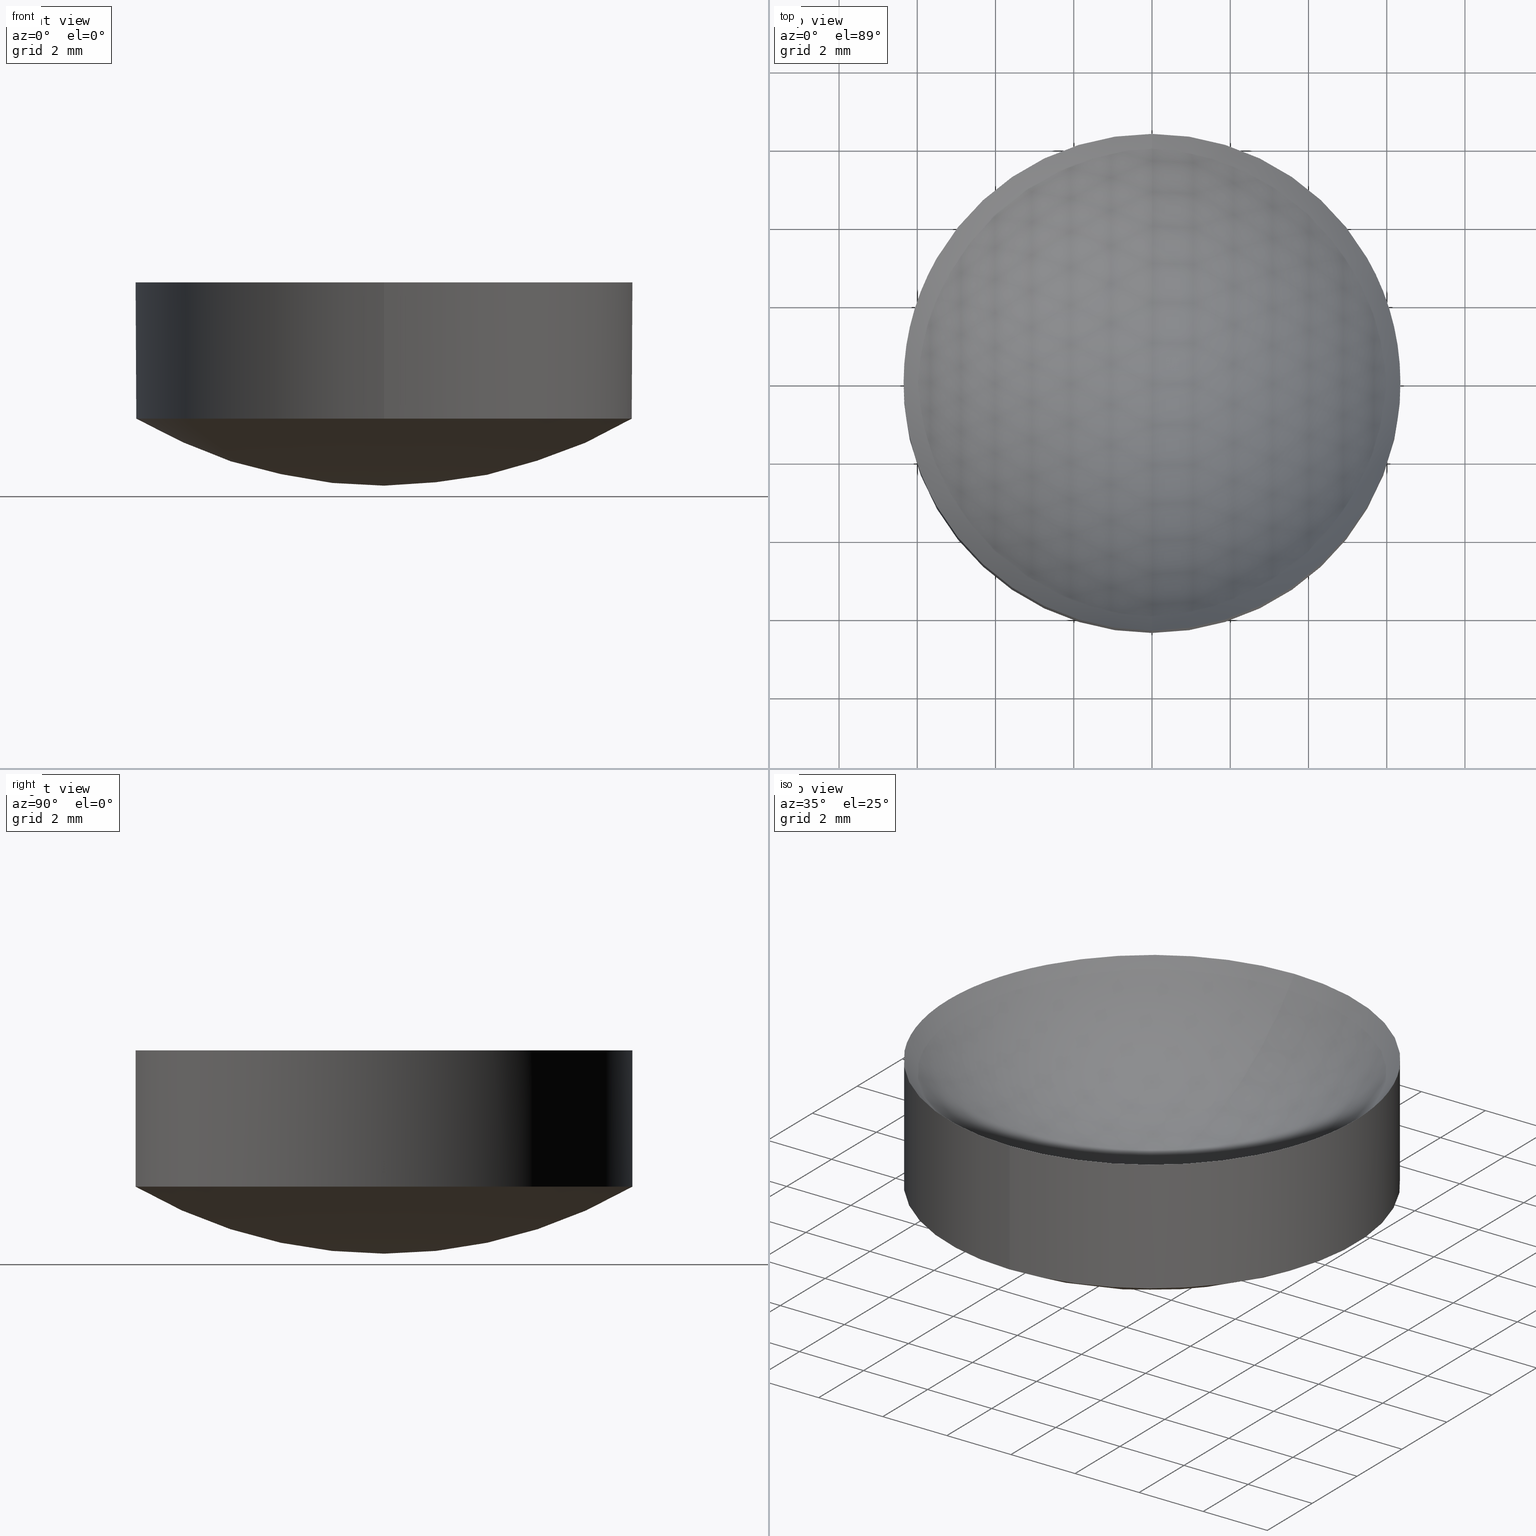
[diagram: canonical four-view strip — front | top / right | iso, engineering-drawing reading convention]
A machine part, canonical four-view strip (front | top / right | iso — engineering-drawing reading convention). The complete STEP part file that produces these views, byte-faithful:
ISO-10303-21;
HEADER;
FILE_DESCRIPTION (( 'STEP AP203' ),
    '1' );
FILE_NAME ('20235-E0W.STEP',
    '2009-09-14T20:15:10',
    ( 'Admin' ),
    ( 'Thorlabs, Inc.' ),
    'SwSTEP 2.0',
    'SolidWorks 2007',
    '' );
FILE_SCHEMA (( 'CONFIG_CONTROL_DESIGN' ));
ENDSEC;

DATA;
#1 = DIRECTION ( 'NONE',  ( 0.0000000000000000000, 0.0000000000000000000, -1.000000000000000000 ) ) ;
#2 = DIRECTION ( 'NONE',  ( 1.000000000000000000, 0.0000000000000000000, 0.0000000000000000000 ) ) ;
#3 = CARTESIAN_POINT ( 'NONE',  ( 0.0000000000000000000, 1.935857724122411800E-015, 1.000000000000004400 ) ) ;
#4 = CARTESIAN_POINT ( 'NONE',  ( 0.0000000000000000000, 0.0000000000000000000, 8.903999999999994600 ) ) ;
#5 = CARTESIAN_POINT ( 'NONE',  ( 0.0000000000000000000, 0.0000000000000000000, 8.903999999999994600 ) ) ;
#6 = AXIS2_PLACEMENT_3D ( 'NONE', #5, #12, #13 ) ;
#7 = CIRCLE ( 'NONE', #6, 7.903999999999991000 ) ;
#8 = AXIS2_PLACEMENT_3D ( 'NONE', #4, #2, #1 ) ;
#9 = CIRCLE ( 'NONE', #8, 7.903999999999991000 ) ;
#10 = DIRECTION ( 'NONE',  ( 0.0000000000000000000, -1.836909530733566100E-016, 1.000000000000000000 ) ) ;
#11 = DIRECTION ( 'NONE',  ( 0.0000000000000000000, -1.000000000000000000, -1.707404996040163500E-016 ) ) ;
#12 = DIRECTION ( 'NONE',  ( -1.000000000000000000, 1.224606353822377300E-016, 2.249491082733206400E-032 ) ) ;
#13 = DIRECTION ( 'NONE',  ( -1.224606353822377300E-016, -1.000000000000000000, 0.0000000000000000000 ) ) ;
#14 = DIRECTION ( 'NONE',  ( 0.0000000000000000000, -1.000000000000000000, -1.373494438619799700E-016 ) ) ;
#15 = DIRECTION ( 'NONE',  ( 1.000000000000000000, 0.0000000000000000000, 0.0000000000000000000 ) ) ;
#16 = AXIS2_PLACEMENT_3D ( 'NONE', #17, #15, #14 ) ;
#17 = CARTESIAN_POINT ( 'NONE',  ( 0.0000000000000000000, 0.0000000000000000000, 11.63000000000000100 ) ) ;
#18 = SPHERICAL_SURFACE ( 'NONE', #16, 12.63000000000000100 ) ;
#19 = FACE_OUTER_BOUND ( 'NONE', #187, .T. ) ;
#20 = DIRECTION ( 'NONE',  ( -1.000000000000000000, 0.0000000000000000000, 0.0000000000000000000 ) ) ;
#21 = CARTESIAN_POINT ( 'NONE',  ( 0.0000000000000000000, 0.0000000000000000000, 8.903999999999994600 ) ) ;
#22 = AXIS2_PLACEMENT_3D ( 'NONE', #21, #20, #47 ) ;
#23 = DIRECTION ( 'NONE',  ( 0.0000000000000000000, 1.000000000000000000, 2.194741239849201800E-016 ) ) ;
#24 = DIRECTION ( 'NONE',  ( -1.000000000000000000, 0.0000000000000000000, 0.0000000000000000000 ) ) ;
#25 = AXIS2_PLACEMENT_3D ( 'NONE', #35, #24, #23 ) ;
#26 = SPHERICAL_SURFACE ( 'NONE', #25, 7.903999999999991000 ) ;
#27 = FACE_OUTER_BOUND ( 'NONE', #192, .T. ) ;
#28 = SPHERICAL_SURFACE ( 'NONE', #22, 7.903999999999991000 ) ;
#29 = DIRECTION ( 'NONE',  ( 0.0000000000000000000, 0.0000000000000000000, 1.000000000000000000 ) ) ;
#30 = DIRECTION ( 'NONE',  ( -1.000000000000000000, 0.0000000000000000000, 0.0000000000000000000 ) ) ;
#31 = CARTESIAN_POINT ( 'NONE',  ( 0.0000000000000000000, 0.0000000000000000000, 11.63000000000000100 ) ) ;
#32 = DIRECTION ( 'NONE',  ( 1.000000000000000000, -1.224606353822377300E-016, -2.249491082733206400E-032 ) ) ;
#33 = AXIS2_PLACEMENT_3D ( 'NONE', #39, #32, #36 ) ;
#34 = CIRCLE ( 'NONE', #33, 12.63000000000000100 ) ;
#35 = CARTESIAN_POINT ( 'NONE',  ( 0.0000000000000000000, 0.0000000000000000000, 8.903999999999994600 ) ) ;
#36 = DIRECTION ( 'NONE',  ( 1.224606353822377300E-016, 1.000000000000000000, 0.0000000000000000000 ) ) ;
#37 = AXIS2_PLACEMENT_3D ( 'NONE', #46, #45, #44 ) ;
#38 = CIRCLE ( 'NONE', #37, 6.350000000000001400 ) ;
#39 = CARTESIAN_POINT ( 'NONE',  ( 0.0000000000000000000, 0.0000000000000000000, 11.63000000000000100 ) ) ;
#40 = FACE_OUTER_BOUND ( 'NONE', #179, .T. ) ;
#41 = AXIS2_PLACEMENT_3D ( 'NONE', #31, #30, #29 ) ;
#42 = CIRCLE ( 'NONE', #41, 12.63000000000000300 ) ;
#43 = CARTESIAN_POINT ( 'NONE',  ( 0.0000000000000000000, 1.546677824877662800E-015, -0.9999999999999991100 ) ) ;
#44 = DIRECTION ( 'NONE',  ( 0.0000000000000000000, -1.000000000000000000, -1.365923996832131400E-016 ) ) ;
#45 = DIRECTION ( 'NONE',  ( 0.0000000000000000000, -1.836909530733566100E-016, 1.000000000000000000 ) ) ;
#46 = CARTESIAN_POINT ( 'NONE',  ( 0.0000000000000000000, -5.873601405913803400E-016, 4.197545283336950200 ) ) ;
#47 = DIRECTION ( 'NONE',  ( 0.0000000000000000000, 1.000000000000000000, 2.194741239849201800E-016 ) ) ;
#48 = CARTESIAN_POINT ( 'NONE',  ( 0.0000000000000000000, 0.0000000000000000000, 1.000000000000000000 ) ) ;
#49 = AXIS2_PLACEMENT_3D ( 'NONE', #48, #10, #11 ) ;
#50 = CYLINDRICAL_SURFACE ( 'NONE', #49, 6.350000000000003200 ) ;
#51 = DIRECTION ( 'NONE',  ( 0.0000000000000000000, -1.000000000000000000, -1.707404996040163500E-016 ) ) ;
#52 = DIRECTION ( 'NONE',  ( 0.0000000000000000000, -1.836909530733566100E-016, 1.000000000000000000 ) ) ;
#53 = AXIS2_PLACEMENT_3D ( 'NONE', #55, #52, #51 ) ;
#54 = DIRECTION ( 'NONE',  ( 0.0000000000000000000, -1.836909530733566100E-016, 1.000000000000000000 ) ) ;
#55 = CARTESIAN_POINT ( 'NONE',  ( 0.0000000000000000000, 0.0000000000000000000, 1.000000000000000000 ) ) ;
#56 = DIRECTION ( 'NONE',  ( 0.0000000000000000000, -1.000000000000000000, -1.878145495644179600E-016 ) ) ;
#57 = CYLINDRICAL_SURFACE ( 'NONE', #53, 6.350000000000003200 ) ;
#58 = AXIS2_PLACEMENT_3D ( 'NONE', #60, #54, #56 ) ;
#59 = FACE_OUTER_BOUND ( 'NONE', #205, .T. ) ;
#60 = CARTESIAN_POINT ( 'NONE',  ( 0.0000000000000000000, 5.283296928876126500E-017, 0.7123812120041507200 ) ) ;
#61 = CIRCLE ( 'NONE', #58, 6.350000000000004100 ) ;
#62 = DIRECTION ( 'NONE',  ( 0.0000000000000000000, -1.836909530733566100E-016, 1.000000000000000000 ) ) ;
#63 = VECTOR ( 'NONE', #62, 1000.000000000000000 ) ;
#64 = CARTESIAN_POINT ( 'NONE',  ( 7.776250346772099300E-016, 6.350000000000003200, 1.000000000000001100 ) ) ;
#65 = LINE ( 'NONE', #64, #63 ) ;
#66 = LINE ( 'NONE', #83, #82 ) ;
#67 = CARTESIAN_POINT ( 'NONE',  ( -7.776250346772098400E-016, -6.350000000000001400, 4.197545283336949300 ) ) ;
#68 = DIRECTION ( 'NONE',  ( 0.0000000000000000000, -1.000000000000000000, -1.365923996832131400E-016 ) ) ;
#69 = DIRECTION ( 'NONE',  ( 0.0000000000000000000, -1.836909530733566100E-016, 1.000000000000000000 ) ) ;
#70 = CARTESIAN_POINT ( 'NONE',  ( 0.0000000000000000000, -5.873601405913803400E-016, 4.197545283336950200 ) ) ;
#71 = AXIS2_PLACEMENT_3D ( 'NONE', #70, #69, #68 ) ;
#72 = CIRCLE ( 'NONE', #71, 6.350000000000001400 ) ;
#73 = CARTESIAN_POINT ( 'NONE',  ( 0.0000000000000000000, 6.350000000000001400, 4.197545283336951100 ) ) ;
#74 = FACE_OUTER_BOUND ( 'NONE', #224, .T. ) ;
#75 = DIRECTION ( 'NONE',  ( 0.0000000000000000000, -1.000000000000000000, -1.373494438619799700E-016 ) ) ;
#76 = DIRECTION ( 'NONE',  ( 1.000000000000000000, 0.0000000000000000000, 0.0000000000000000000 ) ) ;
#77 = CARTESIAN_POINT ( 'NONE',  ( 0.0000000000000000000, 0.0000000000000000000, 11.63000000000000100 ) ) ;
#78 = AXIS2_PLACEMENT_3D ( 'NONE', #77, #76, #75 ) ;
#79 = SPHERICAL_SURFACE ( 'NONE', #78, 12.63000000000000100 ) ;
#80 = FACE_OUTER_BOUND ( 'NONE', #220, .T. ) ;
#81 = DIRECTION ( 'NONE',  ( 0.0000000000000000000, -1.836909530733566100E-016, 1.000000000000000000 ) ) ;
#82 = VECTOR ( 'NONE', #81, 1000.000000000000000 ) ;
#83 = CARTESIAN_POINT ( 'NONE',  ( 0.0000000000000000000, -6.350000000000003200, 0.9999999999999988900 ) ) ;
#84 = DIRECTION ( 'NONE',  ( 0.0000000000000000000, -1.836909530733566100E-016, 1.000000000000000000 ) ) ;
#85 = CARTESIAN_POINT ( 'NONE',  ( 0.0000000000000000000, 5.283296928876126500E-017, 0.7123812120041507200 ) ) ;
#86 = DIRECTION ( 'NONE',  ( 1.000000000000000000, 0.0000000000000000000, 0.0000000000000000000 ) ) ;
#87 = DIRECTION ( 'NONE',  ( 0.0000000000000000000, 0.0000000000000000000, 1.000000000000000000 ) ) ;
#88 = DIRECTION ( 'NONE',  ( 0.0000000000000000000, -1.000000000000000000, -1.878145495644179600E-016 ) ) ;
#89 = CC_DESIGN_APPROVAL ( #97, ( #100 ) ) ;
#90 = APPROVAL_DATE_TIME ( #91, #97 ) ;
#91 = DATE_AND_TIME ( #92, #93 ) ;
#92 = CALENDAR_DATE ( 2009, 14, 9 ) ;
#93 = LOCAL_TIME ( 16, 15, 10.00000000000000000, #94 ) ;
#94 = COORDINATED_UNIVERSAL_TIME_OFFSET ( 5, 0, .BEHIND. ) ;
#95 = APPROVAL_PERSON_ORGANIZATION ( #99, #97, #96 ) ;
#96 = APPROVAL_ROLE ( '' ) ;
#97 = APPROVAL ( #98, 'UNSPECIFIED' ) ;
#98 = APPROVAL_STATUS ( 'not_yet_approved' ) ;
#99 = PERSON_AND_ORGANIZATION ( #147, #175 ) ;
#100 = PRODUCT_DEFINITION_FORMATION_WITH_SPECIFIED_SOURCE ( 'ANY', '', #148, .NOT_KNOWN. ) ;
#101 = CC_DESIGN_DATE_AND_TIME_ASSIGNMENT ( #103, #102, ( #162 ) ) ;
#102 = DATE_TIME_ROLE ( 'creation_date' ) ;
#103 = DATE_AND_TIME ( #104, #105 ) ;
#104 = CALENDAR_DATE ( 2009, 14, 9 ) ;
#105 = LOCAL_TIME ( 16, 15, 10.00000000000000000, #106 ) ;
#106 = COORDINATED_UNIVERSAL_TIME_OFFSET ( 5, 0, .BEHIND. ) ;
#107 = CC_DESIGN_PERSON_AND_ORGANIZATION_ASSIGNMENT ( #150, #149, ( #162 ) ) ;
#108 = SHAPE_DEFINITION_REPRESENTATION ( #140, #109 ) ;
#109 = ADVANCED_BREP_SHAPE_REPRESENTATION ( '20235-E0W', ( #222, #173 ), #170 ) ;
#110 =( NAMED_UNIT ( * ) SI_UNIT ( $, .STERADIAN. ) SOLID_ANGLE_UNIT ( ) );
#111 =( LENGTH_UNIT ( ) NAMED_UNIT ( * ) SI_UNIT ( .MILLI., .METRE. ) );
#112 = CALENDAR_DATE ( 2009, 14, 9 ) ;
#113 = LOCAL_TIME ( 16, 15, 10.00000000000000000, #114 ) ;
#114 = COORDINATED_UNIVERSAL_TIME_OFFSET ( 5, 0, .BEHIND. ) ;
#115 = APPROVAL_PERSON_ORGANIZATION ( #119, #117, #116 ) ;
#116 = APPROVAL_ROLE ( '' ) ;
#117 = APPROVAL ( #118, 'UNSPECIFIED' ) ;
#118 = APPROVAL_STATUS ( 'not_yet_approved' ) ;
#119 = PERSON_AND_ORGANIZATION ( #147, #175 ) ;
#120 = CC_DESIGN_DATE_AND_TIME_ASSIGNMENT ( #122, #121, ( #129 ) ) ;
#121 = DATE_TIME_ROLE ( 'classification_date' ) ;
#122 = DATE_AND_TIME ( #123, #124 ) ;
#123 = CALENDAR_DATE ( 2009, 14, 9 ) ;
#124 = LOCAL_TIME ( 16, 15, 10.00000000000000000, #125 ) ;
#125 = COORDINATED_UNIVERSAL_TIME_OFFSET ( 5, 0, .BEHIND. ) ;
#126 = CC_DESIGN_PERSON_AND_ORGANIZATION_ASSIGNMENT ( #128, #127, ( #129 ) ) ;
#127 = PERSON_AND_ORGANIZATION_ROLE ( 'classification_officer' ) ;
#128 = PERSON_AND_ORGANIZATION ( #147, #175 ) ;
#129 = SECURITY_CLASSIFICATION ( '', '', #130 ) ;
#130 = SECURITY_CLASSIFICATION_LEVEL ( 'unclassified' ) ;
#131 = CC_DESIGN_PERSON_AND_ORGANIZATION_ASSIGNMENT ( #133, #132, ( #100 ) ) ;
#132 = PERSON_AND_ORGANIZATION_ROLE ( 'design_supplier' ) ;
#133 = PERSON_AND_ORGANIZATION ( #147, #175 ) ;
#134 = CC_DESIGN_PERSON_AND_ORGANIZATION_ASSIGNMENT ( #136, #135, ( #100 ) ) ;
#135 = PERSON_AND_ORGANIZATION_ROLE ( 'creator' ) ;
#136 = PERSON_AND_ORGANIZATION ( #147, #175 ) ;
#137 = MECHANICAL_CONTEXT ( 'NONE', #139, 'mechanical' ) ;
#138 = APPLICATION_PROTOCOL_DEFINITION ( 'international standard', 'config_control_design', 1994, #139 ) ;
#139 = APPLICATION_CONTEXT ( 'configuration controlled 3d designs of mechanical parts and assemblies' ) ;
#140 = PRODUCT_DEFINITION_SHAPE ( 'NONE', 'NONE',  #162 ) ;
#141 = PRODUCT_RELATED_PRODUCT_CATEGORY ( 'detail', '', ( #148 ) ) ;
#142 = CC_DESIGN_SECURITY_CLASSIFICATION ( #129, ( #100 ) ) ;
#143 = CC_DESIGN_APPROVAL ( #117, ( #129 ) ) ;
#144 = APPROVAL_DATE_TIME ( #145, #117 ) ;
#145 = DATE_AND_TIME ( #112, #113 ) ;
#146 =( NAMED_UNIT ( * ) PLANE_ANGLE_UNIT ( ) SI_UNIT ( $, .RADIAN. ) );
#147 = PERSON ( 'UNSPECIFIED', 'UNSPECIFIED', 'UNSPECIFIED', ('UNSPECIFIED'), ('UNSPECIFIED'), ('UNSPECIFIED') ) ;
#148 = PRODUCT ( '20235-E0W', '20235-E0W', '', ( #137 ) ) ;
#149 = PERSON_AND_ORGANIZATION_ROLE ( 'creator' ) ;
#150 = PERSON_AND_ORGANIZATION ( #147, #175 ) ;
#151 = CC_DESIGN_APPROVAL ( #159, ( #162 ) ) ;
#152 = APPROVAL_DATE_TIME ( #153, #159 ) ;
#153 = DATE_AND_TIME ( #154, #155 ) ;
#154 = CALENDAR_DATE ( 2009, 14, 9 ) ;
#155 = LOCAL_TIME ( 16, 15, 10.00000000000000000, #156 ) ;
#156 = COORDINATED_UNIVERSAL_TIME_OFFSET ( 5, 0, .BEHIND. ) ;
#157 = APPROVAL_PERSON_ORGANIZATION ( #161, #159, #158 ) ;
#158 = APPROVAL_ROLE ( '' ) ;
#159 = APPROVAL ( #160, 'UNSPECIFIED' ) ;
#160 = APPROVAL_STATUS ( 'not_yet_approved' ) ;
#161 = PERSON_AND_ORGANIZATION ( #147, #175 ) ;
#162 = PRODUCT_DEFINITION ( 'UNKNOWN', '', #100, #163 ) ;
#163 = DESIGN_CONTEXT ( 'detailed design', #165, 'design' ) ;
#164 = APPLICATION_PROTOCOL_DEFINITION ( 'international standard', 'config_control_design', 1994, #165 ) ;
#165 = APPLICATION_CONTEXT ( 'configuration controlled 3d designs of mechanical parts and assemblies' ) ;
#166 = CC_DESIGN_PERSON_AND_ORGANIZATION_ASSIGNMENT ( #174, #167, ( #148 ) ) ;
#167 = PERSON_AND_ORGANIZATION_ROLE ( 'design_owner' ) ;
#168 = CARTESIAN_POINT ( 'NONE',  ( 0.0000000000000000000, -6.350000000000001400, 0.7123812120041489400 ) ) ;
#169 = CARTESIAN_POINT ( 'NONE',  ( 0.0000000000000000000, 0.0000000000000000000, 0.0000000000000000000 ) ) ;
#170 =( GEOMETRIC_REPRESENTATION_CONTEXT ( 3 ) GLOBAL_UNCERTAINTY_ASSIGNED_CONTEXT ( ( #176 ) ) GLOBAL_UNIT_ASSIGNED_CONTEXT ( ( #111, #146, #110 ) ) REPRESENTATION_CONTEXT ( 'NONE', 'WORKASPACE' ) );
#171 = AXIS2_PLACEMENT_3D ( 'NONE', #85, #84, #88 ) ;
#172 = CIRCLE ( 'NONE', #171, 6.350000000000004100 ) ;
#173 = AXIS2_PLACEMENT_3D ( 'NONE', #169, #87, #86 ) ;
#174 = PERSON_AND_ORGANIZATION ( #147, #175 ) ;
#175 = ORGANIZATION ( 'UNSPECIFIED', 'UNSPECIFIED', '' ) ;
#176 = UNCERTAINTY_MEASURE_WITH_UNIT (LENGTH_MEASURE( 1.000000000000000100E-005 ), #111, 'distance_accuracy_value', 'NONE');
#177 = VERTEX_POINT ( 'NONE', #178 ) ;
#178 = CARTESIAN_POINT ( 'NONE',  ( 7.776250346772096400E-016, 6.350000000000003200, 0.7123812120041527200 ) ) ;
#179 = EDGE_LOOP ( 'NONE', ( #180, #183, #185 ) ) ;
#180 = ORIENTED_EDGE ( 'NONE', *, *, #181, .F. ) ;
#181 = EDGE_CURVE ( 'NONE', #182, #213, #9, .T. ) ;
#182 = VERTEX_POINT ( 'NONE', #3 ) ;
#183 = ORIENTED_EDGE ( 'NONE', *, *, #184, .T. ) ;
#184 = EDGE_CURVE ( 'NONE', #182, #216, #7, .T. ) ;
#185 = ORIENTED_EDGE ( 'NONE', *, *, #215, .T. ) ;
#186 = ADVANCED_FACE ( 'NONE', ( #19 ), #28, .F. ) ;
#187 = EDGE_LOOP ( 'NONE', ( #188, #189, #190 ) ) ;
#188 = ORIENTED_EDGE ( 'NONE', *, *, #184, .F. ) ;
#189 = ORIENTED_EDGE ( 'NONE', *, *, #181, .T. ) ;
#190 = ORIENTED_EDGE ( 'NONE', *, *, #191, .T. ) ;
#191 = EDGE_CURVE ( 'NONE', #213, #216, #38, .T. ) ;
#192 = EDGE_LOOP ( 'NONE', ( #200, #201, #202 ) ) ;
#193 = EDGE_CURVE ( 'NONE', #194, #227, #42, .T. ) ;
#194 = VERTEX_POINT ( 'NONE', #43 ) ;
#195 = ORIENTED_EDGE ( 'NONE', *, *, #196, .T. ) ;
#196 = EDGE_CURVE ( 'NONE', #194, #177, #34, .T. ) ;
#197 = ORIENTED_EDGE ( 'NONE', *, *, #226, .F. ) ;
#198 = ADVANCED_FACE ( 'NONE', ( #40 ), #26, .F. ) ;
#199 = ADVANCED_FACE ( 'NONE', ( #27 ), #18, .T. ) ;
#200 = ORIENTED_EDGE ( 'NONE', *, *, #196, .F. ) ;
#201 = ORIENTED_EDGE ( 'NONE', *, *, #193, .T. ) ;
#202 = ORIENTED_EDGE ( 'NONE', *, *, #203, .F. ) ;
#203 = EDGE_CURVE ( 'NONE', #177, #227, #61, .T. ) ;
#204 = ADVANCED_FACE ( 'NONE', ( #59 ), #57, .T. ) ;
#205 = EDGE_LOOP ( 'NONE', ( #206, #207, #208, #209 ) ) ;
#206 = ORIENTED_EDGE ( 'NONE', *, *, #212, .F. ) ;
#207 = ORIENTED_EDGE ( 'NONE', *, *, #203, .T. ) ;
#208 = ORIENTED_EDGE ( 'NONE', *, *, #218, .T. ) ;
#209 = ORIENTED_EDGE ( 'NONE', *, *, #191, .F. ) ;
#210 = CLOSED_SHELL ( 'NONE', ( #223, #219, #198, #186, #199, #204 ) ) ;
#211 = ORIENTED_EDGE ( 'NONE', *, *, #212, .T. ) ;
#212 = EDGE_CURVE ( 'NONE', #177, #213, #65, .T. ) ;
#213 = VERTEX_POINT ( 'NONE', #73 ) ;
#214 = ORIENTED_EDGE ( 'NONE', *, *, #215, .F. ) ;
#215 = EDGE_CURVE ( 'NONE', #216, #213, #72, .T. ) ;
#216 = VERTEX_POINT ( 'NONE', #67 ) ;
#217 = ORIENTED_EDGE ( 'NONE', *, *, #218, .F. ) ;
#218 = EDGE_CURVE ( 'NONE', #227, #216, #66, .T. ) ;
#219 = ADVANCED_FACE ( 'NONE', ( #80 ), #79, .T. ) ;
#220 = EDGE_LOOP ( 'NONE', ( #221, #195, #197 ) ) ;
#221 = ORIENTED_EDGE ( 'NONE', *, *, #193, .F. ) ;
#222 = MANIFOLD_SOLID_BREP ( 'NONE', #210 ) ;
#223 = ADVANCED_FACE ( 'NONE', ( #74 ), #50, .T. ) ;
#224 = EDGE_LOOP ( 'NONE', ( #225, #211, #214, #217 ) ) ;
#225 = ORIENTED_EDGE ( 'NONE', *, *, #226, .T. ) ;
#226 = EDGE_CURVE ( 'NONE', #227, #177, #172, .T. ) ;
#227 = VERTEX_POINT ( 'NONE', #168 ) ;
ENDSEC;
END-ISO-10303-21;
